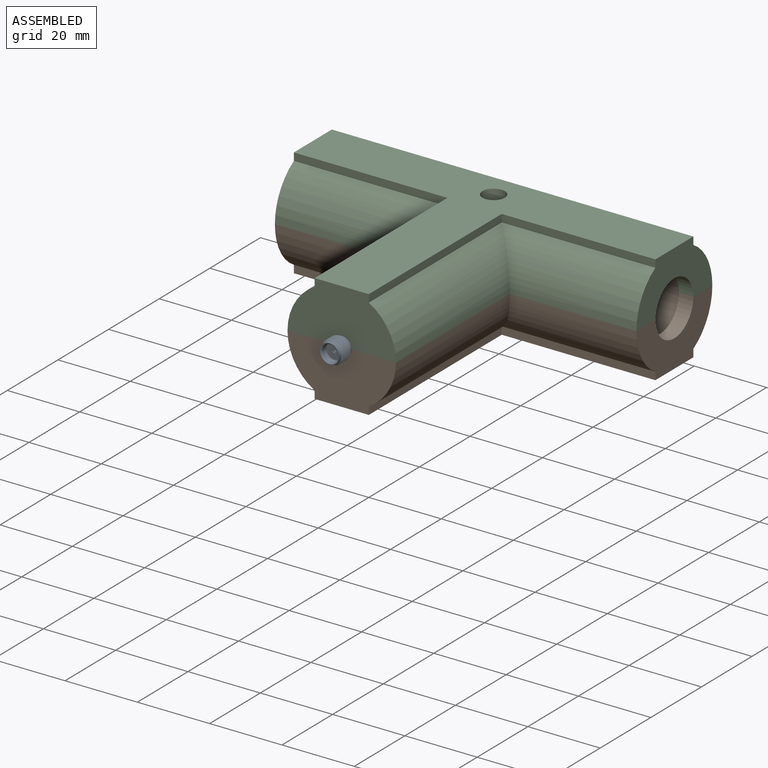
[diagram: assembled view]
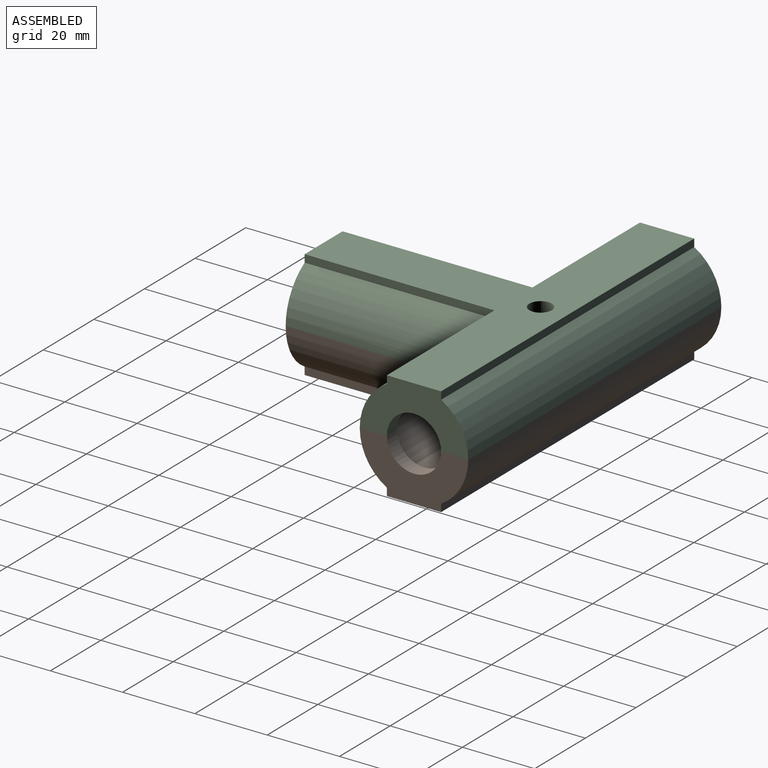
[diagram: assembled view, second angle]
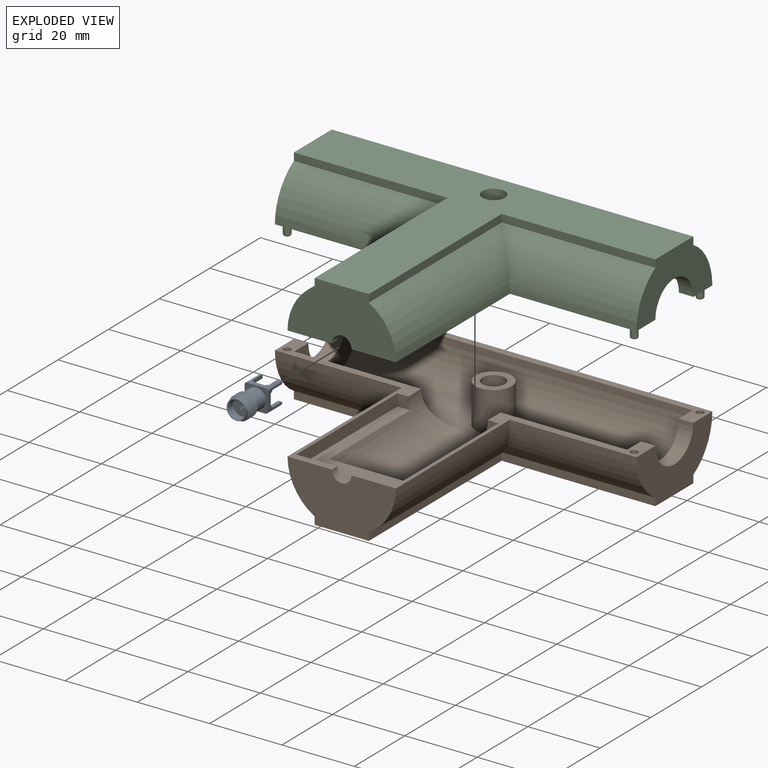
[diagram: exploded view]
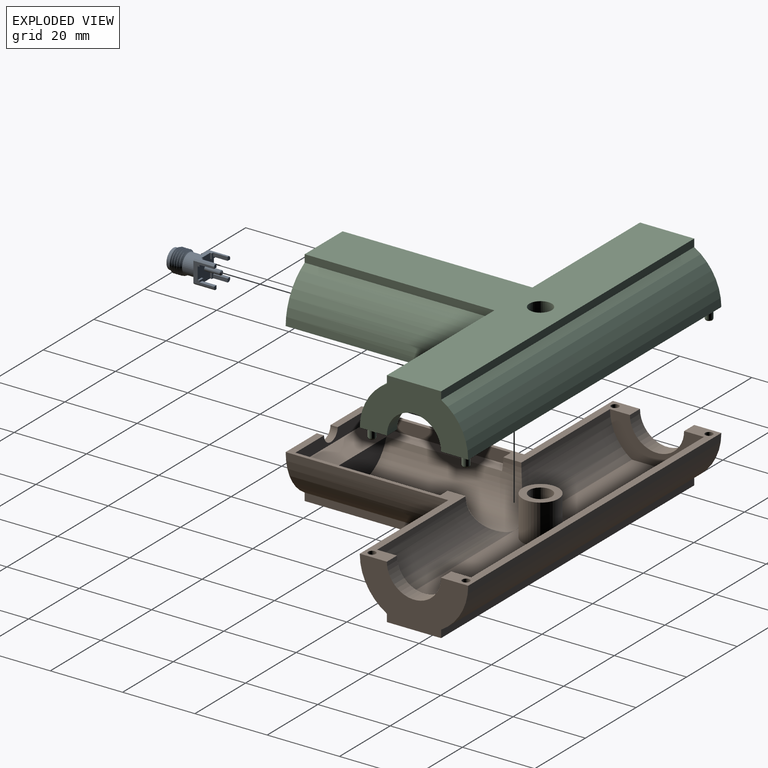
[diagram: exploded view, second angle]
ASSEMBLY  parts=3 mates=2
PART A: 56 faces, bbox 6.7x6.7x13.5 mm
  f0: plane 5.38x5.38mm, normal (0,0,1), area 2.3mm2, adj f1,f47
  f1: cylinder r=2.69mm len=5.38mm, axis (0,0,1), area 12.9mm2, adj f0,f3
  f2: cylinder r=2.69mm len=5.38mm, axis (0,0,1), area 58.9mm2, adj f9,f10
  f3: cone r=2.85mm half-angle=45deg, axis (0,0,-1), area 7.2mm2, adj f1,f4,f5,f6
  f4: bspline ~6.75x6.72mm, area 10.2mm2, adj f3,f5,f6,f7
  f5: cylinder r=3.17mm len=6.35mm, axis (0,0,1), area 1.4mm2, adj f3,f4,f6,f7,f8,f9
  f6: bspline ~6.75x6.72mm, area 15.1mm2, adj f3,f4,f5,f8
  f7: bspline ~6.49x6.49mm, area 31.9mm2, adj f4,f5,f8,f9
  f8: bspline ~6.49x6.49mm, area 27mm2, adj f5,f6,f7,f9
  f9: cone r=2.87mm half-angle=45deg, axis (0,0,1), area 7.2mm2, adj f2,f5,f7,f8
  f10: plane 6.4x6.4mm, normal (0,0,1), area 17.9mm2, adj f2,f11,f12,f13,f14,f15,f16,f28
  f11: cylinder r=4.25mm len=5.7mm, axis (0,0,-1), area 3.3mm2, adj f10,f13,f17,f37
  f12: cylinder r=4.25mm len=5.7mm, axis (0,0,-1), area 3.3mm2, adj f10,f16,f18,f37
  f13: plane 5.7x5.59mm, normal (0,1,0), area 12.6mm2, adj f10,f11,f15,f17,f20,f21,f22,f23
  f14: cylinder r=4.25mm len=5.7mm, axis (0,0,-1), area 3.3mm2, adj f10,f16,f19,f28
  f15: cylinder r=4.25mm len=5.7mm, axis (0,0,-1), area 3.3mm2, adj f10,f13,f20,f28
  f16: plane 5.7x5.59mm, normal (0,-1,0), area 12.6mm2, adj f10,f12,f14,f18,f19,f24,f25,f27
  f17: plane 1x1mm, normal (0,0,-1), area 0.9mm2, adj f11,f13,f21,f37,f38
  f18: plane 1x1mm, normal (0,0,-1), area 0.9mm2, adj f12,f16,f37,f41,f42
  f19: plane 1x1mm, normal (0,0,-1), area 0.9mm2, adj f14,f16,f28,f29,f30
  f20: plane 1x1mm, normal (0,0,-1), area 0.9mm2, adj f13,f15,f28,f33,f34
  f21: plane 4x1mm, normal (-1,0,0), area 4mm2, adj f13,f17,f23,f38
  f22: plane 1.5x1.5mm, normal (0,0,-1), area 1.3mm2, adj f13,f26,f28,f33,f34,f43
  f23: plane 1.5x1.5mm, normal (0,0,-1), area 1.3mm2, adj f13,f21,f37,f38,f39,f40
  f24: plane 1.5x1.5mm, normal (0,0,-1), area 1.3mm2, adj f16,f35,f36,f37,f41,f42
  f25: plane 1.5x1.5mm, normal (0,0,-1), area 1.3mm2, adj f16,f28,f29,f30,f31,f32
  f26: plane 1.5x0.5mm, normal (0,-1,0), area 0.8mm2, adj f22,f27,f28,f43
  f27: plane 6.4x6.4mm, normal (0,0,-1), area 30.7mm2, adj f13,f16,f26,f28,f31,f32,f35,f36
  f28: plane 5.7x5.59mm, normal (-1,0,0), area 12.6mm2, adj f10,f14,f15,f19,f20,f22,f25,f26
  f29: plane 4x1mm, normal (0,1,0), area 4mm2, adj f19,f25,f28,f30
  f30: plane 4x1mm, normal (1,0,0), area 4mm2, adj f16,f19,f25,f29
  f31: plane 1.5x0.5mm, normal (0,1,0), area 0.8mm2, adj f25,f27,f28,f32
  f32: plane 1.5x0.5mm, normal (1,0,0), area 0.8mm2, adj f16,f25,f27,f31
  f33: plane 4x1mm, normal (0,-1,0), area 4mm2, adj f20,f22,f28,f34
  f34: plane 4x1mm, normal (1,0,0), area 4mm2, adj f13,f20,f22,f33
  f35: plane 1.5x0.5mm, normal (-1,0,0), area 0.8mm2, adj f16,f24,f27,f36
  f36: plane 1.5x0.5mm, normal (0,1,0), area 0.8mm2, adj f24,f27,f35,f37
  f37: plane 5.7x5.59mm, normal (1,0,0), area 12.6mm2, adj f10,f11,f12,f17,f18,f23,f24,f27
  f38: plane 4x1mm, normal (0,-1,0), area 4mm2, adj f17,f21,f23,f37
  f39: plane 1.5x0.5mm, normal (0,-1,0), area 0.8mm2, adj f23,f27,f37,f40
  f40: plane 1.5x0.5mm, normal (-1,0,0), area 0.8mm2, adj f13,f23,f27,f39
  f41: plane 4x1mm, normal (0,1,0), area 4mm2, adj f18,f24,f37,f42
  f42: plane 4x1mm, normal (-1,0,0), area 4mm2, adj f16,f18,f24,f41
  f43: plane 1.5x0.5mm, normal (1,0,0), area 0.8mm2, adj f13,f22,f26,f27
  f44: cylinder r=0.64mm len=4.3mm, axis (0,0,-1), area 17.2mm2, adj f27,f45
  f45: cone r=0.53mm half-angle=45deg, axis (0,0,1), area 1mm2, adj f44,f46
  f46: plane 0.87x0.87mm, normal (0,0,-1), area 0.6mm2, adj f45
  f47: cone r=2.43mm half-angle=45deg, axis (0,0,1), area 5.5mm2, adj f0,f48
  f48: cylinder r=2.3mm len=4.6mm, axis (0,0,1), area 24.2mm2, adj f47,f49
  f49: plane 4.6x4.6mm, normal (0,0,1), area 0.7mm2, adj f48,f50
  f50: cylinder r=2.25mm len=4.5mm, axis (0,0,1), area 0.7mm2, adj f49,f51
  f51: plane 4.5x4.5mm, normal (0,0,1), area 14.8mm2, adj f50,f52
  f52: cylinder r=0.57mm len=1.14mm, axis (0,0,1), area 0.9mm2, adj f51,f53
  f53: plane 1.14x1.14mm, normal (0,0,1), area 0.7mm2, adj f52,f54
  f54: cylinder r=0.33mm len=0.66mm, axis (0,0,1), area 0.8mm2, adj f53,f55
  f55: plane 0.66x0.66mm, normal (0,0,1), area 0.3mm2, adj f54
PART B: 45 faces, bbox 100x75x15.1 mm
  f0: cylinder r=15mm len=100mm, axis (1,0,0), area 1570.8mm2, adj f8,f9,f11,f31
  f1: cylinder r=15mm len=42.5mm, axis (1,0,0), area 590.5mm2, adj f9,f13,f17,f30
  f2: cylinder r=15mm len=52.5mm, axis (0,-1,0), area 747.6mm2, adj f10,f12,f16,f33
  f3: cylinder r=13mm len=46mm, axis (1,0,0), area 495.8mm2, adj f7,f15,f17,f27
  f4: cylinder r=13mm len=46mm, axis (1,0,0), area 495.8mm2, adj f6,f10,f15,f27
  f5: cylinder r=13mm len=92mm, axis (1,0,0), area 1206.4mm2, adj f6,f7,f8,f27
  f6: plane 26x11mm, normal (1,0,0), area 158.3mm2, adj f4,f5,f8,f10,f25,f27
  f7: plane 26x11mm, normal (-1,0,0), area 158.3mm2, adj f3,f5,f8,f17,f26,f27
  f8: plane 100x7.5mm, normal (0,0,-1), area 237.1mm2, adj f0,f5,f6,f7,f9,f11,f25,f26
  f9: plane 30x15.1mm, normal (1,0,0), area 276.3mm2, adj f0,f1,f8,f17,f26,f30,f31,f34
  f10: plane 52.5x47.3mm, normal (0,0,-1), area 173.1mm2, adj f2,f4,f6,f11,f12,f15,f16,f18
  f11: plane 30x15.1mm, normal (-1,0,0), area 276.3mm2, adj f0,f8,f10,f12,f25,f31,f32,f34
  f12: cylinder r=15mm len=42.5mm, axis (1,0,0), area 590.5mm2, adj f2,f10,f11,f32
  f13: cylinder r=15mm len=52.5mm, axis (0,-1,0), area 747.6mm2, adj f1,f16,f17,f29
  f14: plane 21.02x7.75mm, normal (0,1,0), area 119.6mm2, adj f15,f19
  f15: cylinder r=11mm len=43.07mm, axis (0,-1,0), area 1164.4mm2, adj f3,f4,f10,f14,f17,f19,f20,f21
  f16: plane 30x15.1mm, normal (0,-1,0), area 353.2mm2, adj f2,f10,f13,f17,f18,f29,f33,f34
  f17: plane 52.5x47.3mm, normal (0,0,-1), area 173.1mm2, adj f1,f3,f7,f9,f13,f15,f16,f18
  f18: cylinder r=2.7mm len=5.4mm, axis (0,-1,0), area 17mm2, adj f10,f16,f17,f22
  f19: plane 40x28mm, normal (0,0,-1), area 447.4mm2, adj f14,f15,f20,f21,f22,f23,f24
  f20: plane 3.49x3.25mm, normal (0,-1,0), area 10.3mm2, adj f10,f15,f19,f23
  f21: plane 3.49x3.25mm, normal (0,-1,0), area 10.3mm2, adj f15,f17,f19,f24
  f22: plane 28x3.25mm, normal (0,1,0), area 79.5mm2, adj f10,f17,f18,f19,f23,f24
  f23: plane 40x3.25mm, normal (1,0,0), area 130mm2, adj f10,f19,f20,f22
  f24: plane 40x3.25mm, normal (-1,0,0), area 130mm2, adj f17,f19,f21,f22
  f25: cylinder r=7.5mm len=15mm, axis (-1,0,0), area 94.2mm2, adj f6,f8,f10,f11
  f26: cylinder r=7.5mm len=15mm, axis (1,0,0), area 94.2mm2, adj f7,f8,f9,f17
  f27: plane 92x13.86mm, normal (0,0,-1), area 1196.2mm2, adj f3,f4,f5,f6,f7,f35
  f28: cylinder r=3.1mm len=15.1mm, axis (0,0,-1), area 294.1mm2, adj f34,f36
  f29: plane 52.5x2.11mm, normal (1,0,0), area 110.8mm2, adj f13,f16,f30,f34
  f30: plane 42.5x2.11mm, normal (0,-1,0), area 89.7mm2, adj f1,f9,f29,f34
  f31: plane 100x2.11mm, normal (0,1,0), area 211mm2, adj f0,f9,f11,f34
  f32: plane 42.5x2.11mm, normal (0,-1,0), area 89.7mm2, adj f11,f12,f33,f34
  f33: plane 52.5x2.11mm, normal (-1,0,0), area 110.8mm2, adj f2,f16,f32,f34
  f34: plane 100x67.5mm, normal (0,0,1), area 2257.3mm2, adj f9,f11,f16,f28,f29,f30,f31,f32
  f35: cylinder r=5mm len=11mm, axis (0,0,1), area 345.6mm2, adj f27,f36
  f36: plane 10x10mm, normal (0,0,-1), area 48.3mm2, adj f28,f35
  f37: cylinder r=1.05mm len=4mm, axis (0,0,-1), area 26.4mm2, adj f17,f38
  f38: plane 2.1x2.1mm, normal (0,0,-1), area 3.5mm2, adj f37
  f39: cylinder r=1.05mm len=4mm, axis (0,0,-1), area 26.4mm2, adj f10,f40
  f40: plane 2.1x2.1mm, normal (0,0,-1), area 3.5mm2, adj f39
  f41: cylinder r=1.05mm len=4mm, axis (0,0,-1), area 26.4mm2, adj f8,f42
  f42: plane 2.1x2.1mm, normal (0,0,-1), area 3.5mm2, adj f41
  f43: cylinder r=1.05mm len=4mm, axis (0,0,-1), area 26.4mm2, adj f8,f44
  f44: plane 2.1x2.1mm, normal (0,0,-1), area 3.5mm2, adj f43
PART C: 49 faces, bbox 100x75x18.1 mm
  f0: cylinder r=15mm len=100mm, axis (1,0,0), area 1570.8mm2, adj f8,f9,f11,f31
  f1: cylinder r=15mm len=42.5mm, axis (1,0,0), area 590.5mm2, adj f9,f13,f17,f30
  f2: cylinder r=15mm len=52.5mm, axis (0,-1,0), area 747.6mm2, adj f10,f12,f16,f33
  f3: cylinder r=13mm len=46mm, axis (1,0,0), area 495.8mm2, adj f7,f15,f17,f27
  f4: cylinder r=13mm len=46mm, axis (1,0,0), area 495.8mm2, adj f6,f10,f15,f27
  f5: cylinder r=13mm len=92mm, axis (1,0,0), area 1206.4mm2, adj f6,f7,f8,f27
  f6: plane 26x11mm, normal (1,0,0), area 158.3mm2, adj f4,f5,f8,f10,f25,f27
  f7: plane 26x11mm, normal (-1,0,0), area 158.3mm2, adj f3,f5,f8,f17,f26,f27
  f8: plane 100x7.5mm, normal (0,0,-1), area 237.7mm2, adj f0,f5,f6,f7,f9,f11,f25,f26
  f9: plane 30x15.1mm, normal (1,0,0), area 276.3mm2, adj f0,f1,f8,f17,f26,f30,f31,f34
  f10: plane 52.5x47.3mm, normal (0,0,-1), area 173.5mm2, adj f2,f4,f6,f11,f12,f15,f16,f18
  f11: plane 30x15.1mm, normal (-1,0,0), area 276.3mm2, adj f0,f8,f10,f12,f25,f31,f32,f34
  f12: cylinder r=15mm len=42.5mm, axis (1,0,0), area 590.5mm2, adj f2,f10,f11,f32
  f13: cylinder r=15mm len=52.5mm, axis (0,-1,0), area 747.6mm2, adj f1,f16,f17,f29
  f14: plane 21.02x7.75mm, normal (0,1,0), area 119.6mm2, adj f15,f19
  f15: cylinder r=11mm len=43.07mm, axis (0,-1,0), area 1164.4mm2, adj f3,f4,f10,f14,f17,f19,f20,f21
  f16: plane 30x15.1mm, normal (0,-1,0), area 353.2mm2, adj f2,f10,f13,f17,f18,f29,f33,f34
  f17: plane 52.5x47.3mm, normal (0,0,-1), area 173.5mm2, adj f1,f3,f7,f9,f13,f15,f16,f18
  f18: cylinder r=2.7mm len=5.4mm, axis (0,-1,0), area 17mm2, adj f10,f16,f17,f22
  f19: plane 40x28mm, normal (0,0,-1), area 447.4mm2, adj f14,f15,f20,f21,f22,f23,f24
  f20: plane 3.49x3.25mm, normal (0,-1,0), area 10.3mm2, adj f10,f15,f19,f23
  f21: plane 3.49x3.25mm, normal (0,-1,0), area 10.3mm2, adj f15,f17,f19,f24
  f22: plane 28x3.25mm, normal (0,1,0), area 79.5mm2, adj f10,f17,f18,f19,f23,f24
  f23: plane 40x3.25mm, normal (1,0,0), area 130mm2, adj f10,f19,f20,f22
  f24: plane 40x3.25mm, normal (-1,0,0), area 130mm2, adj f17,f19,f21,f22
  f25: cylinder r=7.5mm len=15mm, axis (-1,0,0), area 94.2mm2, adj f6,f8,f10,f11
  f26: cylinder r=7.5mm len=15mm, axis (1,0,0), area 94.2mm2, adj f7,f8,f9,f17
  f27: plane 92x13.86mm, normal (0,0,-1), area 1196.2mm2, adj f3,f4,f5,f6,f7,f35
  f28: cylinder r=3.1mm len=15.1mm, axis (0,0,-1), area 294.1mm2, adj f34,f36
  f29: plane 52.5x2.11mm, normal (1,0,0), area 110.8mm2, adj f13,f16,f30,f34
  f30: plane 42.5x2.11mm, normal (0,-1,0), area 89.7mm2, adj f1,f9,f29,f34
  f31: plane 100x2.11mm, normal (0,1,0), area 211mm2, adj f0,f9,f11,f34
  f32: plane 42.5x2.11mm, normal (0,-1,0), area 89.7mm2, adj f11,f12,f33,f34
  f33: plane 52.5x2.11mm, normal (-1,0,0), area 110.8mm2, adj f2,f16,f32,f34
  f34: plane 100x67.5mm, normal (0,0,1), area 2257.3mm2, adj f9,f11,f16,f28,f29,f30,f31,f32
  f35: cylinder r=5mm len=11mm, axis (0,0,1), area 345.6mm2, adj f27,f36
  f36: plane 10x10mm, normal (0,0,-1), area 48.3mm2, adj f28,f35
  f37: cylinder r=1mm len=2.5mm, axis (0,0,1), area 15.7mm2, adj f8,f47
  f38: plane 1x1mm, normal (0,0,-1), area 0.8mm2, adj f47
  f39: cylinder r=1mm len=2.5mm, axis (0,0,1), area 15.7mm2, adj f17,f48
  f40: plane 1x1mm, normal (0,0,-1), area 0.8mm2, adj f48
  f41: cylinder r=1mm len=2.5mm, axis (0,0,1), area 15.7mm2, adj f8,f46
  f42: plane 1x1mm, normal (0,0,-1), area 0.8mm2, adj f46
  f43: cylinder r=1mm len=2.5mm, axis (0,0,1), area 15.7mm2, adj f10,f45
  f44: plane 1x1mm, normal (0,0,-1), area 0.8mm2, adj f45
  f45: torus R=0.5mm, axis (0,0,-1), area 4mm2, adj f43,f44
  f46: torus R=0.5mm, axis (0,0,-1), area 4mm2, adj f41,f42
  f47: torus R=0.5mm, axis (0,0,-1), area 4mm2, adj f37,f38
  f48: torus R=0.5mm, axis (0,0,-1), area 4mm2, adj f39,f40
PLACE A rot(axis=(1,0,0),90deg) t=(68.32,-27.38,4.03)mm
PLACE B rot(axis=(0,1,0),180deg) t=(-76.78,22.42,4.03)mm
PLACE C t=(83.32,22.42,4.03)mm
MATE parallel A.f1 <-> C.f2  axis (0,-1,0) through (68.32,-19.58,4.03)mm
MATE parallel C.f43 <-> B.f37  axis (0,0,-1) through (20.32,24.42,4.03)mm
